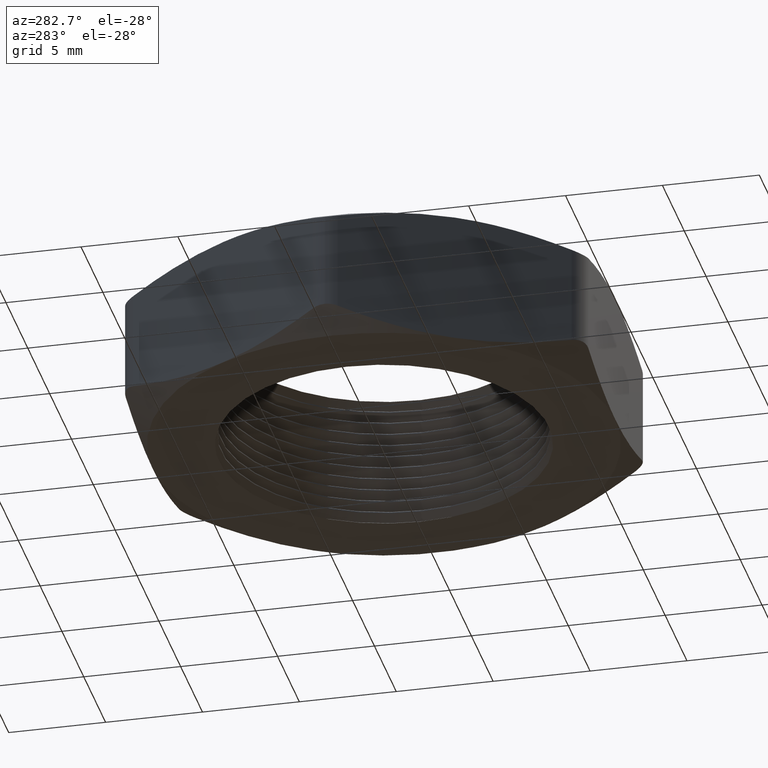
[diagram: clean part render]
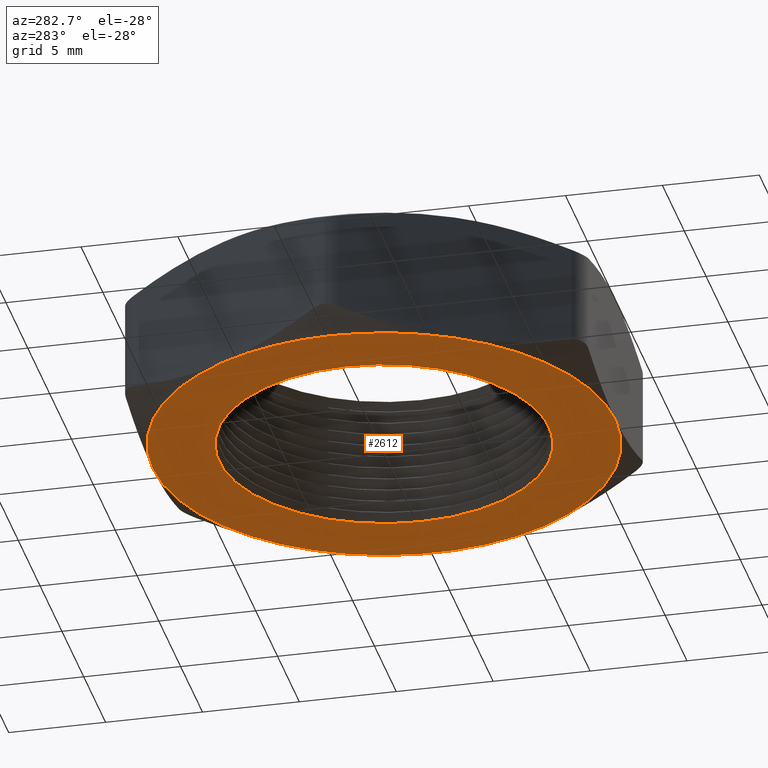
[diagram: same view with one face highlighted and labeled with its STEP entity id]
A machine part, auxiliary view. The second image highlights one B-rep face of the part: STEP entity #2612.
In plain terms, the highlighted planar face has unit normal (0, 0, -1).
Its self-contained STEP definition (entity closure, byte-faithful):
#308 = VERTEX_POINT ( 'NONE', #1179 ) ;
#331 = VERTEX_POINT ( 'NONE', #1218 ) ;
#339 = EDGE_CURVE ( 'NONE', #308, #331, #1261, .T. ) ;
#358 = ORIENTED_EDGE ( 'NONE', *, *, #377, .T. ) ;
#359 = ORIENTED_EDGE ( 'NONE', *, *, #2375, .T. ) ;
#367 = ORIENTED_EDGE ( 'NONE', *, *, #399, .T. ) ;
#371 = EDGE_LOOP ( 'NONE', ( #375, #359 ) ) ;
#373 = EDGE_CURVE ( 'NONE', #432, #2619, #1301, .T. ) ;
#374 = VERTEX_POINT ( 'NONE', #1302 ) ;
#375 = ORIENTED_EDGE ( 'NONE', *, *, #376, .T. ) ;
#376 = EDGE_CURVE ( 'NONE', #2656, #2659, #1296, .T. ) ;
#377 = EDGE_CURVE ( 'NONE', #374, #432, #1355, .T. ) ;
#380 = ORIENTED_EDGE ( 'NONE', *, *, #373, .T. ) ;
#399 = EDGE_CURVE ( 'NONE', #331, #403, #1359, .T. ) ;
#403 = VERTEX_POINT ( 'NONE', #1413 ) ;
#411 = ORIENTED_EDGE ( 'NONE', *, *, #434, .T. ) ;
#432 = VERTEX_POINT ( 'NONE', #1423 ) ;
#434 = EDGE_CURVE ( 'NONE', #2525, #374, #1474, .T. ) ;
#1179 = CARTESIAN_POINT ( 'NONE',  ( -0.4699999999999999700, 0.0000000000000000000, 0.0000000000000000000 ) ) ;
#1218 = CARTESIAN_POINT ( 'NONE',  ( -0.4070319397786861800, 0.2350000000000000400, 0.0000000000000000000 ) ) ;
#1257 = DIRECTION ( 'NONE',  ( -1.000000000000000000, 0.0000000000000000000, 0.0000000000000000000 ) ) ;
#1258 = DIRECTION ( 'NONE',  ( 0.0000000000000000000, 0.0000000000000000000, -1.000000000000000000 ) ) ;
#1259 = CARTESIAN_POINT ( 'NONE',  ( 0.0000000000000000000, 0.0000000000000000000, 0.0000000000000000000 ) ) ;
#1260 = AXIS2_PLACEMENT_3D ( 'NONE', #1259, #1258, #1257 ) ;
#1261 = CIRCLE ( 'NONE', #1260, 0.4699999999999999700 ) ;
#1294 = CARTESIAN_POINT ( 'NONE',  ( 0.0000000000000000000, 0.0000000000000000000, 0.0000000000000000000 ) ) ;
#1295 = AXIS2_PLACEMENT_3D ( 'NONE', #1294, #1357, #1356 ) ;
#1296 = CIRCLE ( 'NONE', #1295, 0.3353589838486221700 ) ;
#1297 = DIRECTION ( 'NONE',  ( -1.000000000000000000, 0.0000000000000000000, 0.0000000000000000000 ) ) ;
#1298 = DIRECTION ( 'NONE',  ( 0.0000000000000000000, 0.0000000000000000000, -1.000000000000000000 ) ) ;
#1299 = CARTESIAN_POINT ( 'NONE',  ( 0.0000000000000000000, 0.0000000000000000000, 0.0000000000000000000 ) ) ;
#1300 = AXIS2_PLACEMENT_3D ( 'NONE', #1299, #1298, #1297 ) ;
#1301 = CIRCLE ( 'NONE', #1300, 0.4699999999999999700 ) ;
#1302 = CARTESIAN_POINT ( 'NONE',  ( 0.4070319397786861800, -0.2350000000000000100, 0.0000000000000000000 ) ) ;
#1351 = DIRECTION ( 'NONE',  ( -1.000000000000000000, 0.0000000000000000000, 0.0000000000000000000 ) ) ;
#1352 = DIRECTION ( 'NONE',  ( 0.0000000000000000000, 0.0000000000000000000, -1.000000000000000000 ) ) ;
#1353 = CARTESIAN_POINT ( 'NONE',  ( 0.0000000000000000000, 0.0000000000000000000, 0.0000000000000000000 ) ) ;
#1354 = AXIS2_PLACEMENT_3D ( 'NONE', #1353, #1352, #1351 ) ;
#1355 = CIRCLE ( 'NONE', #1354, 0.4699999999999999700 ) ;
#1356 = DIRECTION ( 'NONE',  ( -1.000000000000000000, 0.0000000000000000000, 0.0000000000000000000 ) ) ;
#1357 = DIRECTION ( 'NONE',  ( 0.0000000000000000000, 0.0000000000000000000, 1.000000000000000000 ) ) ;
#1358 = AXIS2_PLACEMENT_3D ( 'NONE', #1421, #1420, #1419 ) ;
#1359 = CIRCLE ( 'NONE', #1358, 0.4700000000000000300 ) ;
#1413 = CARTESIAN_POINT ( 'NONE',  ( 0.0000000000000000000, 0.4700000000000000300, 0.0000000000000000000 ) ) ;
#1419 = DIRECTION ( 'NONE',  ( -1.000000000000000000, 0.0000000000000000000, 0.0000000000000000000 ) ) ;
#1420 = DIRECTION ( 'NONE',  ( 0.0000000000000000000, 0.0000000000000000000, -1.000000000000000000 ) ) ;
#1421 = CARTESIAN_POINT ( 'NONE',  ( 0.0000000000000000000, 0.0000000000000000000, 0.0000000000000000000 ) ) ;
#1423 = CARTESIAN_POINT ( 'NONE',  ( 0.0000000000000000000, -0.4700000000000000300, 0.0000000000000000000 ) ) ;
#1470 = DIRECTION ( 'NONE',  ( -1.000000000000000000, 0.0000000000000000000, 0.0000000000000000000 ) ) ;
#1471 = DIRECTION ( 'NONE',  ( 0.0000000000000000000, 0.0000000000000000000, -1.000000000000000000 ) ) ;
#1472 = CARTESIAN_POINT ( 'NONE',  ( 0.0000000000000000000, 0.0000000000000000000, 0.0000000000000000000 ) ) ;
#1473 = AXIS2_PLACEMENT_3D ( 'NONE', #1472, #1471, #1470 ) ;
#1474 = CIRCLE ( 'NONE', #1473, 0.4699999999999999700 ) ;
#1648 = DIRECTION ( 'NONE',  ( -1.000000000000000000, 0.0000000000000000000, 0.0000000000000000000 ) ) ;
#1649 = DIRECTION ( 'NONE',  ( 0.0000000000000000000, 0.0000000000000000000, 1.000000000000000000 ) ) ;
#1650 = CARTESIAN_POINT ( 'NONE',  ( 0.0000000000000000000, 0.0000000000000000000, 0.0000000000000000000 ) ) ;
#1651 = AXIS2_PLACEMENT_3D ( 'NONE', #1650, #1649, #1648 ) ;
#1652 = CIRCLE ( 'NONE', #1651, 0.3353589838486221700 ) ;
#1929 = CARTESIAN_POINT ( 'NONE',  ( 0.4070319397786862400, 0.2350000000000000100, 0.0000000000000000000 ) ) ;
#2081 = CARTESIAN_POINT ( 'NONE',  ( -0.4070319397786862900, -0.2349999999999998800, 0.0000000000000000000 ) ) ;
#2093 = DIRECTION ( 'NONE',  ( -1.000000000000000000, 0.0000000000000000000, 0.0000000000000000000 ) ) ;
#2094 = DIRECTION ( 'NONE',  ( 0.0000000000000000000, 0.0000000000000000000, -1.000000000000000000 ) ) ;
#2095 = CARTESIAN_POINT ( 'NONE',  ( 0.0000000000000000000, 0.0000000000000000000, 0.0000000000000000000 ) ) ;
#2096 = AXIS2_PLACEMENT_3D ( 'NONE', #2095, #2094, #2093 ) ;
#2097 = CIRCLE ( 'NONE', #2096, 0.4699999999999999700 ) ;
#2098 = DIRECTION ( 'NONE',  ( -1.000000000000000000, 0.0000000000000000000, 0.0000000000000000000 ) ) ;
#2099 = DIRECTION ( 'NONE',  ( 0.0000000000000000000, 0.0000000000000000000, -1.000000000000000000 ) ) ;
#2100 = CARTESIAN_POINT ( 'NONE',  ( 0.0000000000000000000, 0.9400000000000000600, 0.0000000000000000000 ) ) ;
#2101 = AXIS2_PLACEMENT_3D ( 'NONE', #2100, #2099, #2098 ) ;
#2102 = PLANE ( 'NONE',  #2101 ) ;
#2103 = FACE_BOUND ( 'NONE', #371, .T. ) ;
#2104 = FACE_OUTER_BOUND ( 'NONE', #2616, .T. ) ;
#2140 = DIRECTION ( 'NONE',  ( -1.000000000000000000, 0.0000000000000000000, 0.0000000000000000000 ) ) ;
#2141 = DIRECTION ( 'NONE',  ( 0.0000000000000000000, 0.0000000000000000000, -1.000000000000000000 ) ) ;
#2142 = CARTESIAN_POINT ( 'NONE',  ( 0.0000000000000000000, 0.0000000000000000000, 0.0000000000000000000 ) ) ;
#2143 = AXIS2_PLACEMENT_3D ( 'NONE', #2142, #2141, #2140 ) ;
#2144 = CIRCLE ( 'NONE', #2143, 0.4699999999999999700 ) ;
#2152 = CARTESIAN_POINT ( 'NONE',  ( -0.3353589838486221700, 4.196613429185488700E-017, 0.0000000000000000000 ) ) ;
#2157 = CARTESIAN_POINT ( 'NONE',  ( 0.3353589838486221700, 0.0000000000000000000, 0.0000000000000000000 ) ) ;
#2375 = EDGE_CURVE ( 'NONE', #2659, #2656, #1652, .T. ) ;
#2525 = VERTEX_POINT ( 'NONE', #1929 ) ;
#2612 = ADVANCED_FACE ( 'NONE', ( #2104, #2103 ), #2102, .T. ) ;
#2613 = EDGE_CURVE ( 'NONE', #403, #2525, #2097, .T. ) ;
#2616 = EDGE_LOOP ( 'NONE', ( #2622, #2620, #367, #2618, #411, #358, #380 ) ) ;
#2618 = ORIENTED_EDGE ( 'NONE', *, *, #2613, .T. ) ;
#2619 = VERTEX_POINT ( 'NONE', #2081 ) ;
#2620 = ORIENTED_EDGE ( 'NONE', *, *, #339, .T. ) ;
#2621 = EDGE_CURVE ( 'NONE', #2619, #308, #2144, .T. ) ;
#2622 = ORIENTED_EDGE ( 'NONE', *, *, #2621, .T. ) ;
#2656 = VERTEX_POINT ( 'NONE', #2157 ) ;
#2659 = VERTEX_POINT ( 'NONE', #2152 ) ;